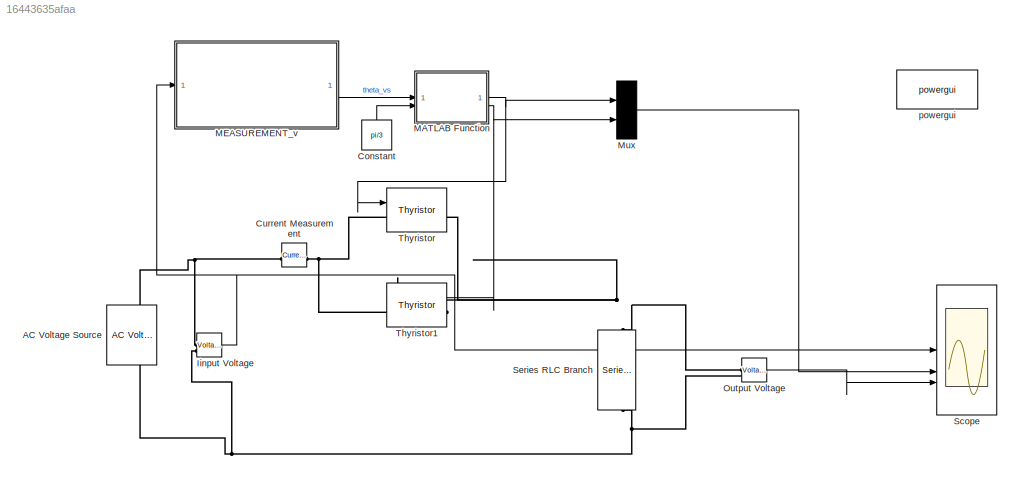
MODEL slx_16443635afaa
KIND model
CONFIG AbsTol = auto
CONFIG EnableMultiTasking = off
CONFIG FixedStep = auto
CONFIG MaxStep = auto
CONFIG MinStep = auto
CONFIG RelTol = 1e-3
CONFIG SampleTimeConstraint = Unconstrained
CONFIG SolverName = VariableStepAuto
CONFIG StartTime = 0.0
CONFIG StopTime = 0.5
BLOCK [Reference]  Iinput Voltage  REF=spsVoltageMeasurementLib/Voltage Measurement
  LibrarySourceBlock = sps_lib/Sensors and Measurements/Voltage Measurement
  SourceBlock = spsVoltageMeasurementLib/Voltage Measurement
  SourceType = Voltage Measurement
  UserDataPersistent = on
BLOCK [Reference] AC Voltage Source  REF=spsACVoltageSourceLib/AC Voltage Source
  LibrarySourceBlock = sps_lib/Sources/AC Voltage Source
  SourceBlock = spsACVoltageSourceLib/AC Voltage Source
  SourceType = AC Voltage Source
BLOCK [Constant] Constant
  NameLocation = right
  Value = pi/3
BLOCK [Reference] Current Measurement  REF=spsCurrentMeasurementLib/Current Measurement
  LibrarySourceBlock = sps_lib/Sensors and Measurements/Current Measurement
  SourceBlock = spsCurrentMeasurementLib/Current Measurement
  SourceType = Current Measurement
  UserDataPersistent = on
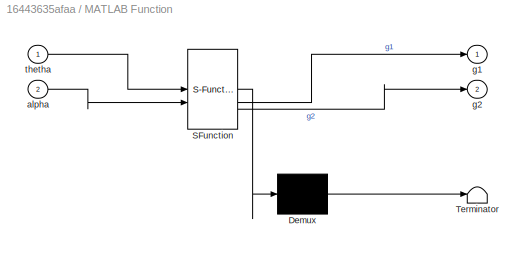
BLOCK [SubSystem] MATLAB Function
  ErrorFcn = Stateflow.Translate.translate
  LibrarySourceBlock = simulink/User-Defined\nFunctions/MATLAB Function
  PermitHierarchicalResolution = ExplicitOnly
  SFBlockType = MATLAB Function
  TreatAsAtomicUnit = on
BLOCK [Demux] MATLAB Function/ Demux 
  Outputs = 1
BLOCK [S-Function] MATLAB Function/ SFunction 
  EnableBusSupport = on
  FunctionName = sf_sfun
  PortCounts = [2 3]
  SFcnIsStateOwnerBlock = off
  SFunctionDeploymentMode = off
  Tag = Stateflow S-Function 2
BLOCK [Terminator] MATLAB Function/ Terminator 
BLOCK [Inport] MATLAB Function/alpha
  Port = 2
BLOCK [Outport] MATLAB Function/g1
BLOCK [Outport] MATLAB Function/g2
  Port = 2
BLOCK [Inport] MATLAB Function/thetha
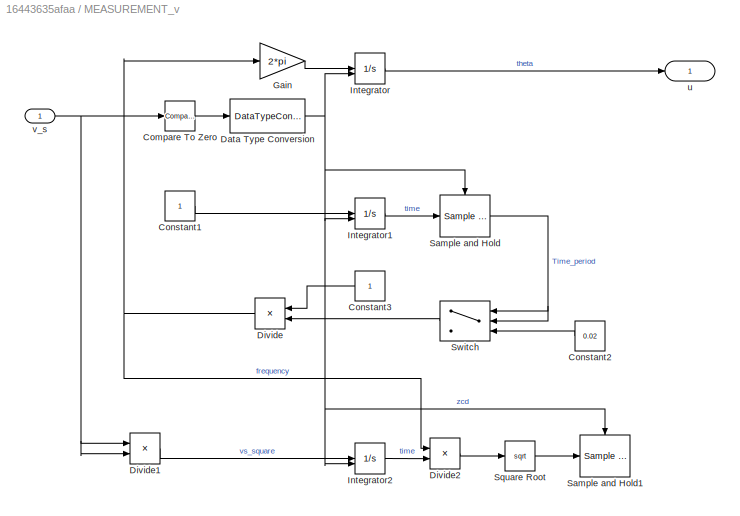
BLOCK [SubSystem] MEASUREMENT_v
BLOCK [Reference] MEASUREMENT_v/Compare To Zero  REF=simulink/Logic and Bit
Operations/Compare
To Zero
  SourceBlock = simulink/Logic and Bit\nOperations/Compare\nTo Zero
  SourceType = Compare To Zero
BLOCK [Constant] MEASUREMENT_v/Constant1
BLOCK [Constant] MEASUREMENT_v/Constant2
  NameLocation = top
  Value = 0.02
BLOCK [Constant] MEASUREMENT_v/Constant3
  NameLocation = top
BLOCK [DataTypeConversion] MEASUREMENT_v/Data Type Conversion
  RndMeth = Floor
  SaturateOnIntegerOverflow = off
BLOCK [Product] MEASUREMENT_v/Divide
  Inputs = */
  NameLocation = top
BLOCK [Product] MEASUREMENT_v/Divide1
  Inputs = **
BLOCK [Product] MEASUREMENT_v/Divide2
  Inputs = **
BLOCK [Gain] MEASUREMENT_v/Gain
  Gain = 2*pi
BLOCK [Integrator] MEASUREMENT_v/Integrator
  ExternalReset = rising
BLOCK [Integrator] MEASUREMENT_v/Integrator1
  ExternalReset = rising
BLOCK [Integrator] MEASUREMENT_v/Integrator2
  ExternalReset = rising
BLOCK [Reference] MEASUREMENT_v/Sample and Hold  REF=dspsigops/Sample
and Hold
  LibrarySourceBlock = dsphdlsupportsigops/Sample\nand Hold
  SourceBlock = dspsigops/Sample\nand Hold
  SourceType = Sample and Hold
BLOCK [Reference] MEASUREMENT_v/Sample and Hold1  REF=dspsigops/Sample
and Hold
  LibrarySourceBlock = dsphdlsupportsigops/Sample\nand Hold
  SourceBlock = dspsigops/Sample\nand Hold
  SourceType = Sample and Hold
BLOCK [Sqrt] MEASUREMENT_v/Square Root
BLOCK [Switch] MEASUREMENT_v/Switch
  Criteria = u2 > Threshold
  InputSameDT = off
  NameLocation = top
  SaturateOnIntegerOverflow = off
BLOCK [Outport] MEASUREMENT_v/u
  IconDisplay = Port number and signal name
BLOCK [Inport] MEASUREMENT_v/v_s
  IconDisplay = Port number and signal name
BLOCK [Mux] Mux
  DisplayOption = bar
  Inputs = 2
BLOCK [Reference] Output Voltage  REF=spsVoltageMeasurementLib/Voltage Measurement
  LibrarySourceBlock = sps_lib/Sensors and Measurements/Voltage Measurement
  SourceBlock = spsVoltageMeasurementLib/Voltage Measurement
  SourceType = Voltage Measurement
  UserDataPersistent = on
BLOCK [Scope] Scope
  Floating = off
  NumInputPorts = 3
  ScopeSpecificationString = Simulink.scopes.TimeScopeBlockCfg('CurrentConfiguration', extmgr.ConfigurationSet(extmgr.Configuration('Core','General UI',true,'FigureColor',[1 1 1]),extmgr.Configuration('Core','Source UI',true),extmgr.Configuration('Sources','WiredSimulink',true),extmgr.Configuration('Visuals','Time Domain',true,'SerializedDisplays',{struct('MinYLimReal','-350.00000','MaxYLimReal','350.00000','YLabelReal','','M...<+3224ch>
BLOCK [Reference] Series RLC Branch  REF=spsSeriesRLCBranchLib/Series RLC Branch
  LibrarySourceBlock = sps_lib/Passives/Series RLC Branch
  NameLocation = left
  SourceBlock = spsSeriesRLCBranchLib/Series RLC Branch
  SourceType = Series RLC Branch
BLOCK [Reference] Thyristor  REF=spsThyristorLib/Thyristor
  LibrarySourceBlock = sps_lib/Power Electronics/Thyristor
  SourceBlock = spsThyristorLib/Thyristor
  SourceType = Thyristor
BLOCK [Reference] Thyristor1  REF=spsThyristorLib/Thyristor
  LibrarySourceBlock = sps_lib/Power Electronics/Thyristor
  NameLocation = top
  SourceBlock = spsThyristorLib/Thyristor
  SourceType = Thyristor
BLOCK [Reference] powergui  REF=spspowerguiLib/powergui
  LibrarySourceBlock = sps_lib/powergui
  Priority = 1
  SourceBlock = spspowerguiLib/powergui
  SourceType = PSB option menu block
NET  Iinput Voltage:1 -> MEASUREMENT_v:1, Scope:1
LINE Constant:1 -> MATLAB Function:2
NET MATLAB Function:1 -> Mux:1, Thyristor:1
NET MATLAB Function:2 -> Mux:2, Thyristor1:1
LINE MEASUREMENT_v/Compare To Zero:1 -> MEASUREMENT_v/Data Type Conversion:1
LINE MEASUREMENT_v/Constant1:1 -> MEASUREMENT_v/Integrator1:1
LINE MEASUREMENT_v/Constant2:1 -> MEASUREMENT_v/Switch:3
LINE MEASUREMENT_v/Constant3:1 -> MEASUREMENT_v/Divide:1
NET MEASUREMENT_v/Data Type Conversion:1 -> MEASUREMENT_v/Integrator1:2, MEASUREMENT_v/Integrator2:2, MEASUREMENT_v/Integrator:2, MEASUREMENT_v/Sample and Hold1:trigger, MEASUREMENT_v/Sample and Hold:trigger
LINE MEASUREMENT_v/Divide1:1 -> MEASUREMENT_v/Integrator2:1
LINE MEASUREMENT_v/Divide2:1 -> MEASUREMENT_v/Square Root:1
NET MEASUREMENT_v/Divide:1 -> MEASUREMENT_v/Divide2:1, MEASUREMENT_v/Gain:1
LINE MEASUREMENT_v/Gain:1 -> MEASUREMENT_v/Integrator:1
LINE MEASUREMENT_v/Integrator1:1 -> MEASUREMENT_v/Sample and Hold:1
LINE MEASUREMENT_v/Integrator2:1 -> MEASUREMENT_v/Divide2:2
LINE MEASUREMENT_v/Integrator:1 -> MEASUREMENT_v/u:1
NET MEASUREMENT_v/Sample and Hold:1 -> MEASUREMENT_v/Switch:1, MEASUREMENT_v/Switch:2
LINE MEASUREMENT_v/Square Root:1 -> MEASUREMENT_v/Sample and Hold1:1
LINE MEASUREMENT_v/Switch:1 -> MEASUREMENT_v/Divide:2
NET MEASUREMENT_v/v_s:1 -> MEASUREMENT_v/Compare To Zero:1, MEASUREMENT_v/Divide1:1, MEASUREMENT_v/Divide1:2
LINE MEASUREMENT_v:1 -> MATLAB Function:1
LINE Mux:1 -> Scope:2
LINE Output Voltage:1 -> Scope:3
PNET net1:  Iinput Voltage:LConn1 -- AC Voltage Source:RConn1 -- Current Measurement:LConn1
PNET net2:  Iinput Voltage:LConn2 -- AC Voltage Source:LConn1 -- Output Voltage:LConn2 -- Series RLC Branch:RConn1
PNET net3: Current Measurement:RConn1 -- Thyristor1:RConn1 -- Thyristor:LConn1
PNET net4: Output Voltage:LConn1 -- Series RLC Branch:LConn1 -- Thyristor1:LConn1 -- Thyristor:RConn1
note: NET lines group one-source signal fan-out (src -> all destinations, sorted); 1:1 wires keep LINE; PNET lines group multi-terminal physical nets as a canonical sorted terminal list (undirected conserving connections); 2-terminal nets keep the pairwise PLINE form
CHART MATLAB Function states=1 transitions=1
  STATE_LABEL 'eML_blk_kernel()'
  STATE_LABEL 'SCRIPT:\nfunction [g1,g2] = fcn(thetha,alpha)\ng1=0;\ng2=0;\nif(thetha>=0 && thetha<alpha)\n    g1=0;\n    g2=0;\nend\nif(thetha>=alpha && thetha<pi)\n    g1=1;\n    g2=0;\nend\nif(thetha>=pi && thetha<(pi+alpha))\n    g1=0;\n    g2=0;\nend\nif(thetha>=(pi+alpha) && thetha<2*pi)\n    g1=0;\n    g2=1;\nend\n'
CHART  states=0 transitions=0
